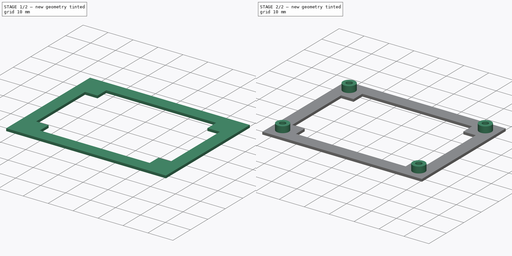
[diagram: build sequence overview — one tinted view per stage of 2, left to right]
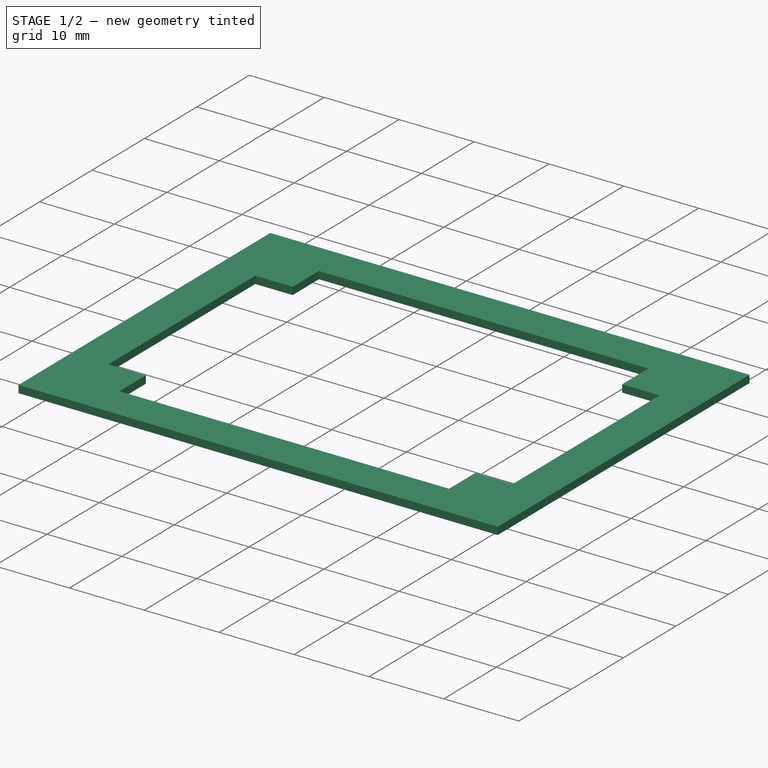
[diagram: stage 1 of 2 — iso view after this stage's code; geometry added in this stage tinted green]
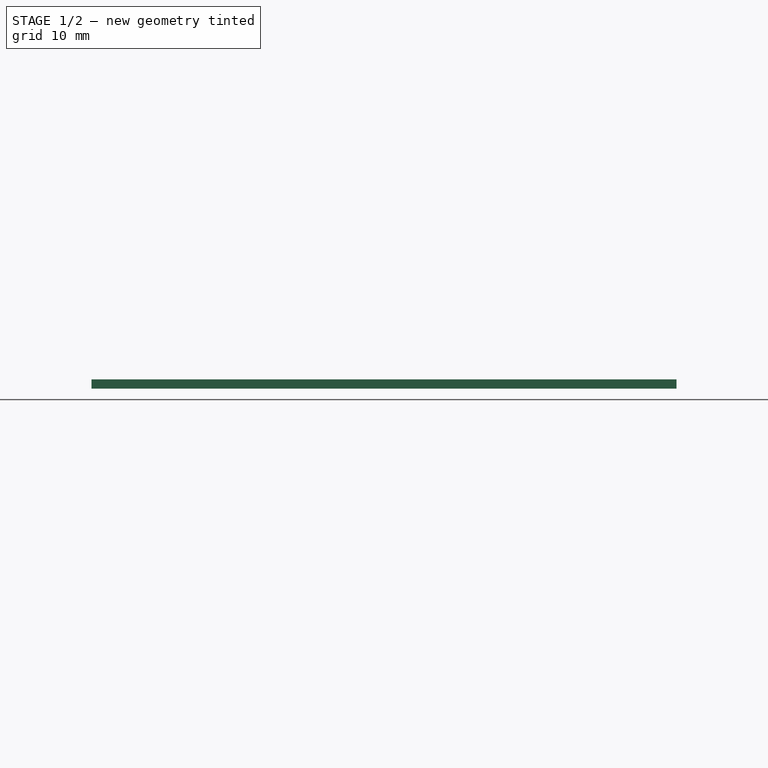
[diagram: stage 1 of 2 — front view after this stage's code; geometry added in this stage tinted green]
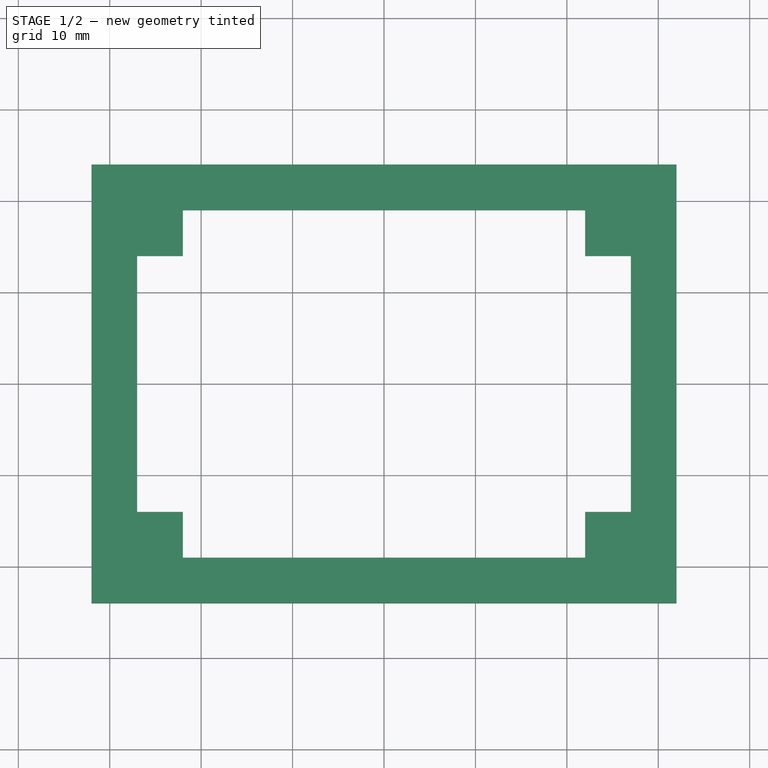
[diagram: stage 1 of 2 — top view after this stage's code; geometry added in this stage tinted green]
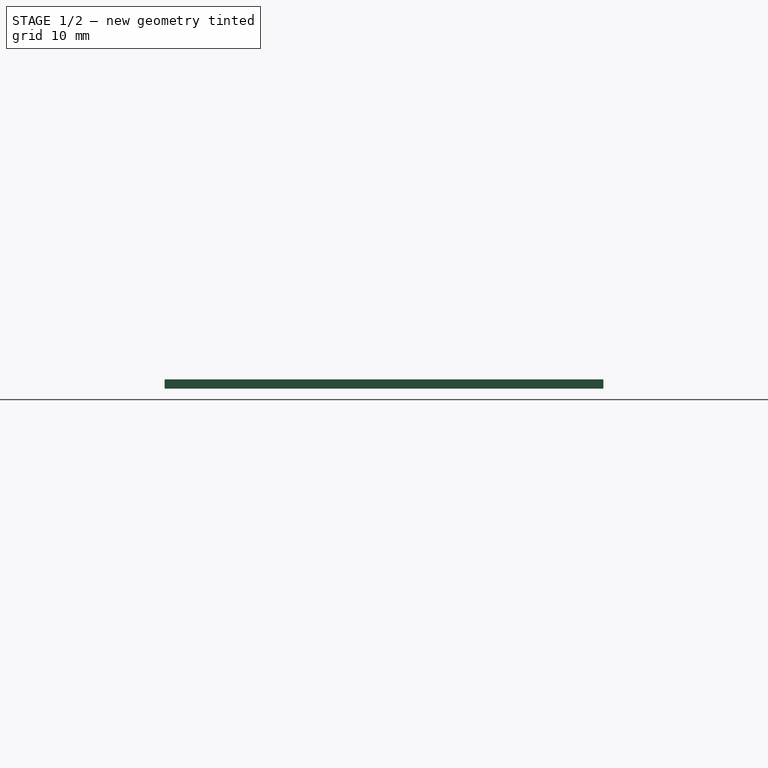
[diagram: stage 1 of 2 — right view after this stage's code; geometry added in this stage tinted green]
FCSTD DOCUMENT  (FreeCAD 0.15R4669 (Git))
Label: preamp_mount_screws
License: CC-BY 3.0
LicenseURL: http://creativecommons.org/licenses/by/3.0/
objects: Sketcher::SketchObject×4, PartDesign::Pad×2, PartDesign::Pocket×2
note: 12 computed .brp shape members not serialized (recipe doc carries the construction recipe); baked Part::Feature solids carry a one-line shape summary decoded from their .brp

FEATURE [Sketcher::SketchObject] Sketch
  sketch-geometry (4):
    g0: LineSegment StartX=-32 StartY=24 StartZ=0 EndX=32 EndY=24 EndZ=0
    g1: LineSegment StartX=32 StartY=24 StartZ=0 EndX=32 EndY=-24 EndZ=0
    g2: LineSegment StartX=32 StartY=-24 StartZ=0 EndX=-32 EndY=-24 EndZ=0
    g3: LineSegment StartX=-32 StartY=-24 StartZ=0 EndX=-32 EndY=24 EndZ=0
  constraints (11):
    c: Coincident(g0,g1)
    c: Coincident(g1,g2)
    c: Coincident(g2,g3)
    c: Coincident(g3,g0)
    c: Horizontal(g0)
    c: Horizontal(g2)
    c: Vertical(g1)
    c: Vertical(g3)
    c: Symmetric(g1,g0,g-1)
    c: DistanceY(g0,g2) = -48
    c: DistanceX(g0,g0) = 64
FEATURE [PartDesign::Pad] Pad
  Length = 1
  Length2 = 0.3
  Sketch = -> Sketch
  Type = 0
FEATURE [Sketcher::SketchObject] Sketch001
  ExternalGeometry = -> [Pad]
  Placement = pos=(0,0,1) rot=(0,0,1;0rad)
  Support = -> Pad [Face6]
  sketch-geometry (12):
    g0: LineSegment StartX=-27 StartY=14 StartZ=0 EndX=-27 EndY=-14 EndZ=0
    g1: LineSegment StartX=-27 StartY=-14 StartZ=0 EndX=-22 EndY=-14 EndZ=0
    g2: LineSegment StartX=-22 StartY=-14 StartZ=0 EndX=-22 EndY=-19 EndZ=0
    g3: LineSegment StartX=-22 StartY=-19 StartZ=0 EndX=22 EndY=-19 EndZ=0
    g4: LineSegment StartX=22 StartY=-19 StartZ=0 EndX=22 EndY=-14 EndZ=0
    g5: LineSegment StartX=22 StartY=-14 StartZ=0 EndX=27 EndY=-14 EndZ=0
    g6: LineSegment StartX=27 StartY=-14 StartZ=0 EndX=27 EndY=14 EndZ=0
    g7: LineSegment StartX=27 StartY=14 StartZ=0 EndX=22 EndY=14 EndZ=0
    g8: LineSegment StartX=22 StartY=14 StartZ=0 EndX=22 EndY=19 EndZ=0
    g9: LineSegment StartX=22 StartY=19 StartZ=0 EndX=-22 EndY=19 EndZ=0
    g10: LineSegment StartX=-22 StartY=19 StartZ=0 EndX=-22 EndY=14 EndZ=0
    g11: LineSegment StartX=-22 StartY=14 StartZ=0 EndX=-27 EndY=14 EndZ=0
  constraints (34):
    c: Vertical(g0)
    c: Coincident(g0,g1)
    c: Horizontal(g1)
    c: Coincident(g1,g2)
    c: Vertical(g2)
    c: Coincident(g2,g3)
    c: Horizontal(g3)
    c: Coincident(g3,g4)
    c: Coincident(g4,g5)
    c: Horizontal(g5)
    c: Coincident(g5,g6)
    c: Vertical(g6)
    c: Coincident(g6,g7)
    c: Horizontal(g7)
    c: Coincident(g7,g8)
    c: Coincident(g8,g9)
    c: Horizontal(g9)
    c: Coincident(g9,g10)
    c: Coincident(g10,g11)
    c: Coincident(g11,g0)
    c: Vertical(g4)
    c: Horizontal(g11)
    c: Vertical(g10)
    c: Vertical(g8)
    c: DistanceX(g-3,g0) = 5
    c: DistanceY(g9,g-3) = 5
    c: DistanceY(g10,g9) = 5
    c: DistanceX(g10,g0) = -5
    c: Symmetric(g9,g3,g-1)
    c: Symmetric(g4,g10,g-1)
    c: Symmetric(g5,g0,g-1)
    c: DistanceY(g7,g-3) = 10
    c: DistanceX(g-3,g7) = -10
    c: Symmetric(g7,g1,g-1)
FEATURE [PartDesign::Pocket] Pocket
  Length = 5
  Sketch = -> Sketch001
  Type = 1
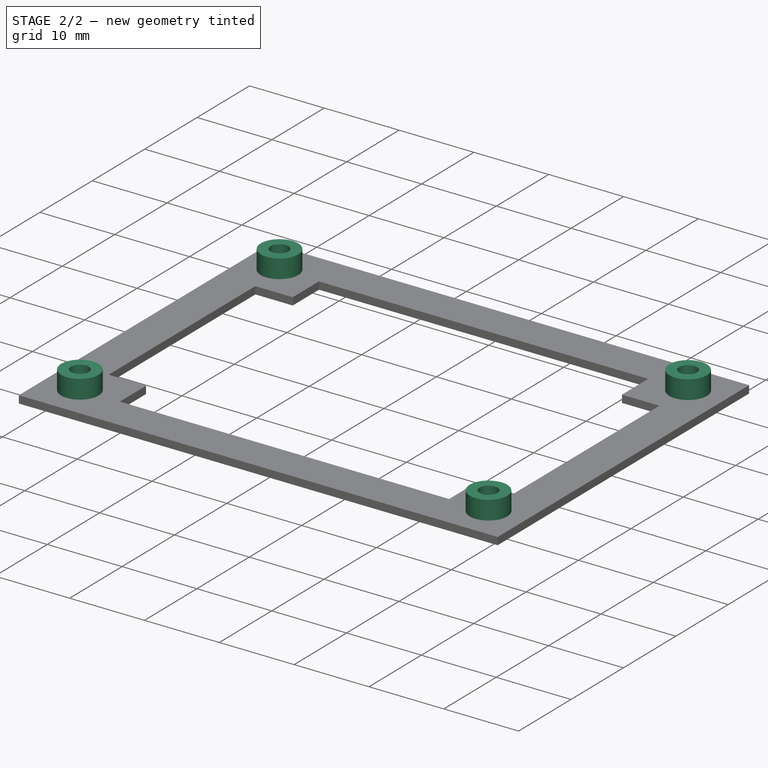
[diagram: stage 2 of 2 — iso view after this stage's code; geometry added in this stage tinted green]
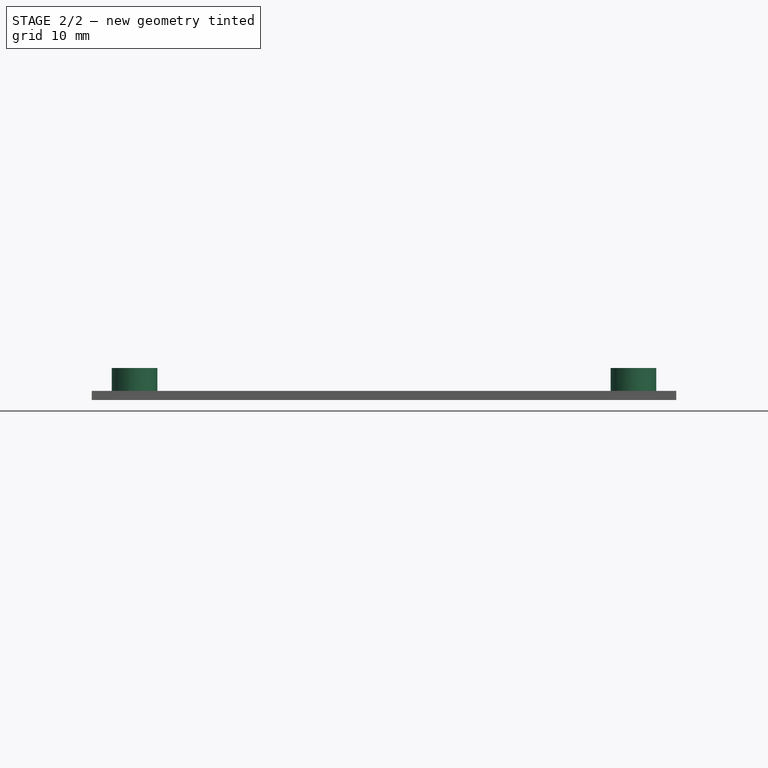
[diagram: stage 2 of 2 — front view after this stage's code; geometry added in this stage tinted green]
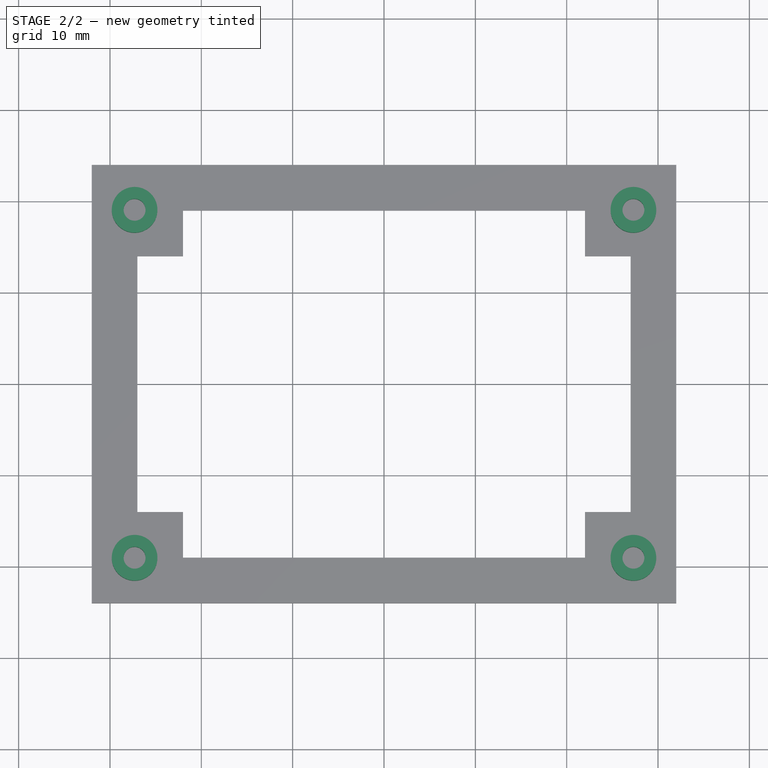
[diagram: stage 2 of 2 — top view after this stage's code; geometry added in this stage tinted green]
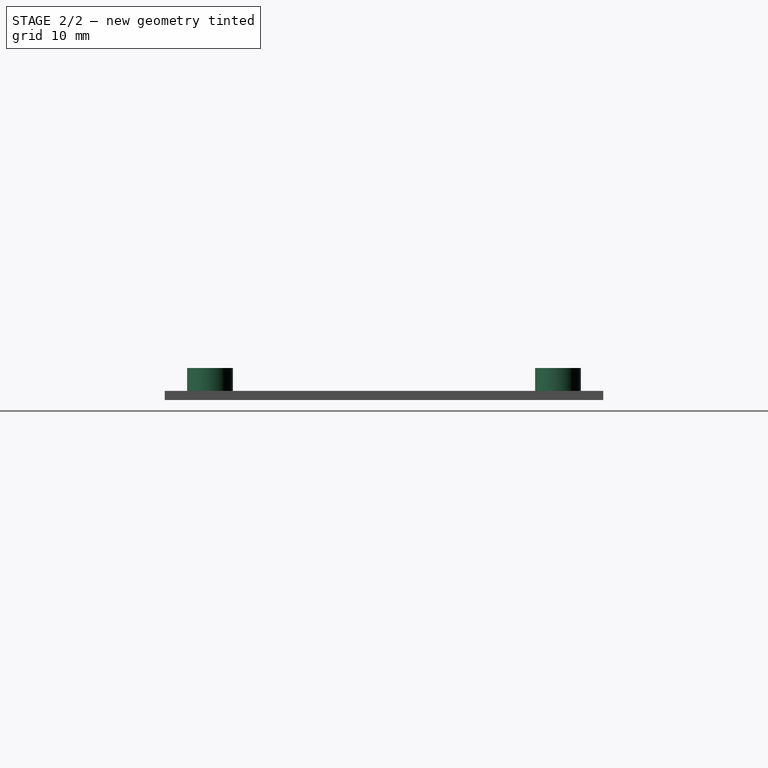
[diagram: stage 2 of 2 — right view after this stage's code; geometry added in this stage tinted green]
FEATURE [Sketcher::SketchObject] Sketch002
  Placement = pos=(0,0,1) rot=(0,0,1;0rad)
  Support = -> Pocket [Face5]
  sketch-geometry (4):
    g0: Circle CenterX=-27.305 CenterY=19.05 CenterZ=0 NormalX=0 NormalY=0 NormalZ=1 Radius=2.5
    g1: Circle CenterX=-27.305 CenterY=-19.05 CenterZ=0 NormalX=0 NormalY=0 NormalZ=1 Radius=2.5
    g2: Circle CenterX=27.305 CenterY=19.05 CenterZ=0 NormalX=0 NormalY=0 NormalZ=1 Radius=2.5
    g3: Circle CenterX=27.305 CenterY=-19.05 CenterZ=0 NormalX=0 NormalY=0 NormalZ=1 Radius=2.5
  constraints (10):
    c: Radius(g0) = 2.5
    c: Radius(g1) = 2.5
    c: Radius(g3) = 2.5
    c: Radius(g2) = 2.5
    c: Symmetric(g0,g3,g-1)
    c: Symmetric(g1,g2,g-1)
    c: DistanceX(g-1,g1) = -27.305
    c: DistanceY(g-1,g1) = -19.05
    c: DistanceY(g1,g0) = 38.1
    c: DistanceX(g1,g3) = 54.61
FEATURE [PartDesign::Pad] Pad001
  Length = 2.5
  Length2 = 0
  Sketch = -> Sketch002
  Type = 0
FEATURE [Sketcher::SketchObject] Sketch003
  ExternalGeometry = -> [Pad001]
  Placement = pos=(0,0,3.5) rot=(0,0,1;0rad)
  Support = -> Pad001 [Face23]
  sketch-geometry (4):
    g0: Circle CenterX=27.305 CenterY=19.05 CenterZ=0 NormalX=0 NormalY=0 NormalZ=1 Radius=1.2
    g1: Circle CenterX=-27.305 CenterY=-19.05 CenterZ=0 NormalX=0 NormalY=0 NormalZ=1 Radius=1.2
    g2: Circle CenterX=27.305 CenterY=-19.05 CenterZ=0 NormalX=0 NormalY=0 NormalZ=1 Radius=1.2
    g3: Circle CenterX=-27.305 CenterY=19.05 CenterZ=0 NormalX=0 NormalY=0 NormalZ=1 Radius=1.2
  constraints (8):
    c: Coincident(g0,g-3)
    c: Coincident(g1,g-4)
    c: Coincident(g2,g-6)
    c: Coincident(g3,g-5)
    c: Radius(g0) = 1.2
    c: Radius(g2) = 1.2
    c: Radius(g3) = 1.2
    c: Radius(g1) = 1.2
FEATURE [PartDesign::Pocket] Pocket001
  Length = 2.5
  Sketch = -> Sketch003
  Type = 0
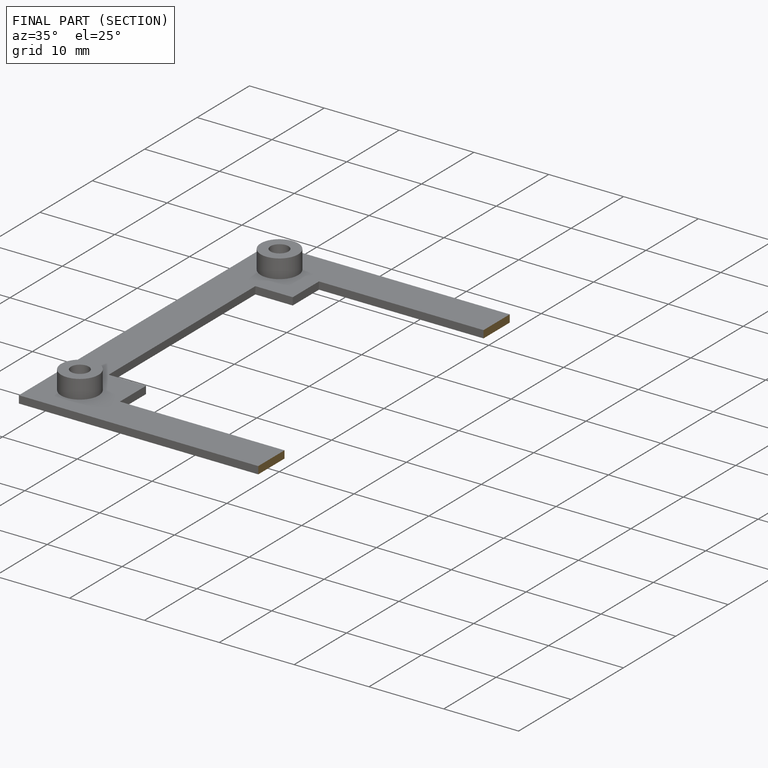
[diagram: finished part — half-section view (interior)]
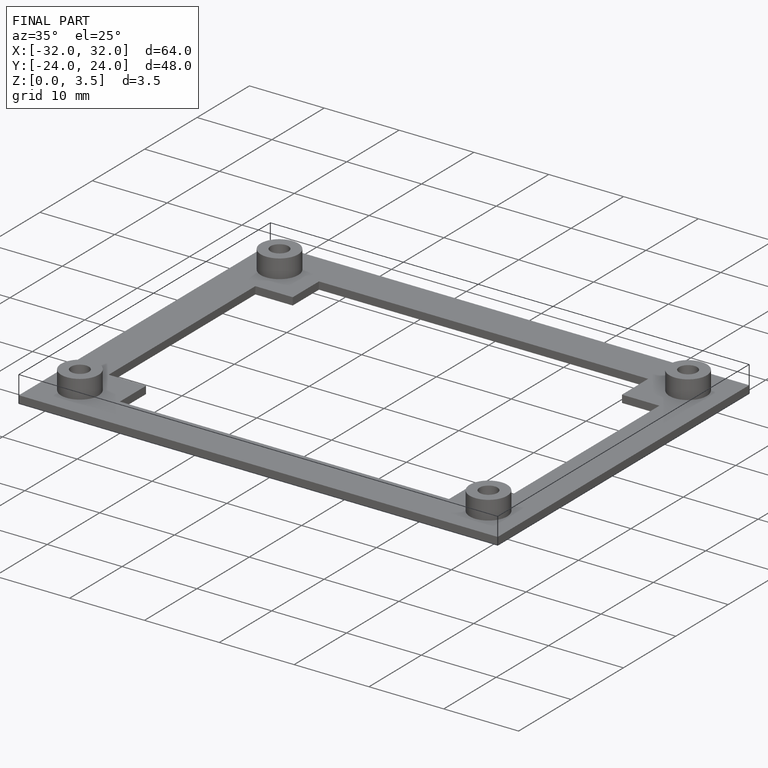
[diagram: finished part — iso view with bounding-box wireframe]
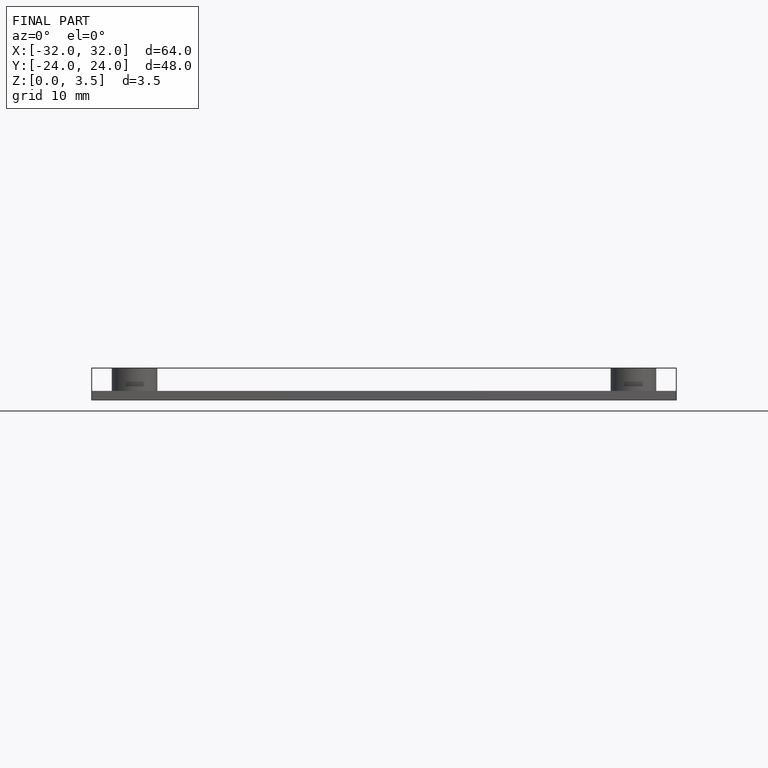
[diagram: finished part — front view with bounding-box wireframe]
